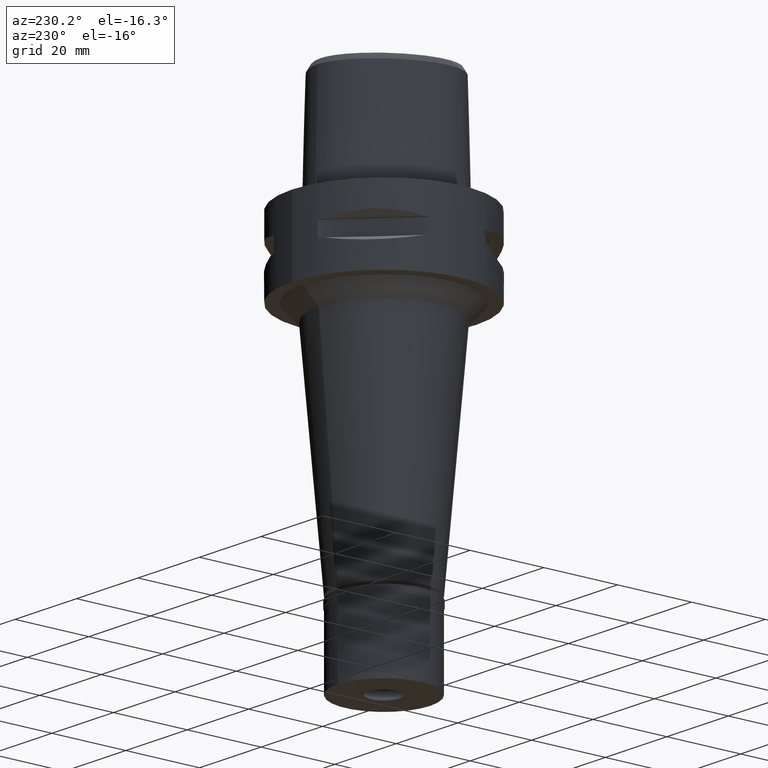
[diagram: clean part render]
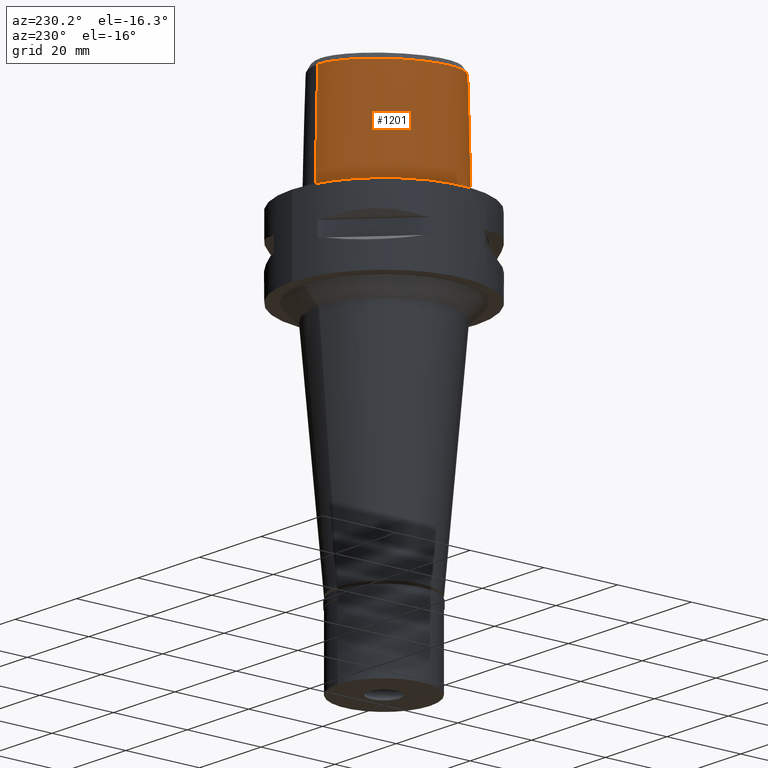
[diagram: same view with one face highlighted and labeled with its STEP entity id]
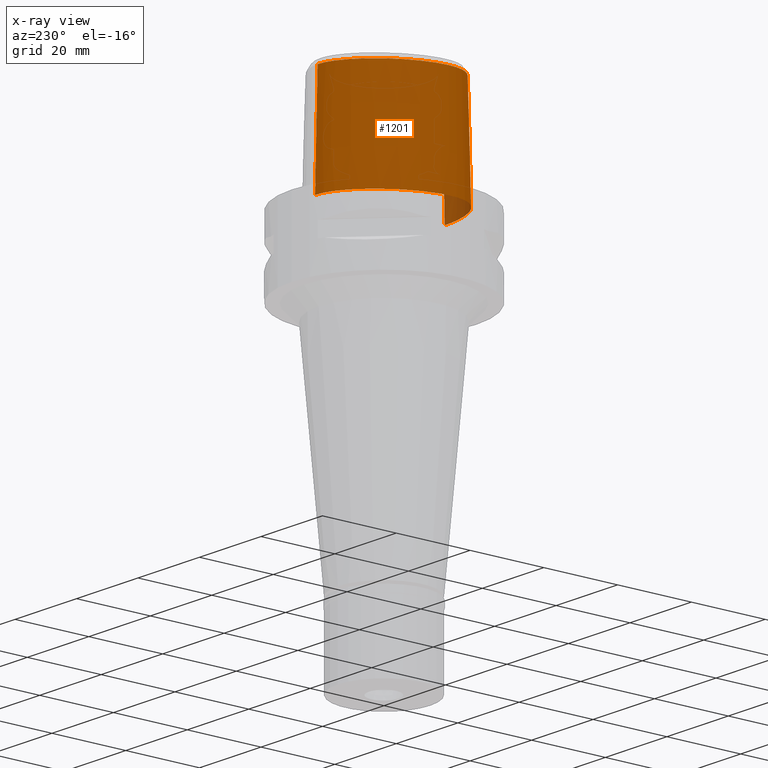
[diagram: x-ray of the same camera — body ghosted, the highlighted face saturated]
A machine part, auxiliary view. The second image highlights one B-rep face of the part: STEP entity #1201.
The next image is the same camera in x-ray: the body ghosted, the highlighted face saturated — about 3% of this face is hidden behind the body in this view.
In plain terms, the highlighted face is a freeform B-spline surface patch.
Its self-contained STEP definition (entity closure, byte-faithful):
#4 = CARTESIAN_POINT ( 'NONE',  ( -3.050024389103566325, -15.93682728871437604, 14.04426652284395161 ) ) ;
#34 = CARTESIAN_POINT ( 'NONE',  ( -2.909137552899626389, -15.97627371699405430, 13.08234413149751418 ) ) ;
#49 = CARTESIAN_POINT ( 'NONE',  ( -4.416345278271000652, 17.06979574764999796, 29.09114768107999893 ) ) ;
#58 = CARTESIAN_POINT ( 'NONE',  ( -2.835998777458668574, -15.98895818849806538, 12.87753709205216879 ) ) ;
#73 = CARTESIAN_POINT ( 'NONE',  ( -4.628819268915999707, 17.52182796820000021, 9.316772786751998936 ) ) ;
#82 = CARTESIAN_POINT ( 'NONE',  ( -2.094858927816664718, -15.97106233740284331, 16.21701581232821354 ) ) ;
#103 = CARTESIAN_POINT ( 'NONE',  ( -16.53021708484999763, 3.708305584169000468, -0.5704146604133999432 ) ) ;
#104 = VERTEX_POINT ( 'NONE', #1241 ) ;
#128 = CARTESIAN_POINT ( 'NONE',  ( -16.70311419453999946, -7.028822882155999707, 19.20396023392000018 ) ) ;
#152 = CARTESIAN_POINT ( 'NONE',  ( -11.69401646375999881, -13.71637917722999944, -0.5704146604133999432 ) ) ;
#153 = CARTESIAN_POINT ( 'NONE',  ( -0.6801907856086026882, 18.69499999639396393, 1.444263577818610117E-07 ) ) ;
#206 = CARTESIAN_POINT ( 'NONE',  ( -5.053620743697999629, -16.16974068390999975, -0.5704146604133999432 ) ) ;
#244 = CARTESIAN_POINT ( 'NONE',  ( -0.6729281202622268143, -16.02259025627639133, 16.97651237904558386 ) ) ;
#286 = EDGE_CURVE ( 'NONE', #2273, #104, #1983, .T. ) ;
#292 = ORIENTED_EDGE ( 'NONE', *, *, #4792, .F. ) ;
#375 = CARTESIAN_POINT ( 'NONE',  ( -2.030787586191475036, -15.97439197203201466, 16.27657083949404182 ) ) ;
#390 = CARTESIAN_POINT ( 'NONE',  ( -4.522582273593999780, 17.29581185792999776, 19.20396023392000018 ) ) ;
#397 = CARTESIAN_POINT ( 'NONE',  ( -2.810669180507298304, -15.93357175435962070, 15.18434255724911708 ) ) ;
#411 = CARTESIAN_POINT ( 'NONE',  ( -17.22987933507999969, -3.272349403228000053, 19.20396023392000018 ) ) ;
#417 = CARTESIAN_POINT ( 'NONE',  ( -3.048918288824055356, -15.93569181003063839, 14.09458409078545671 ) ) ;
#434 = CARTESIAN_POINT ( 'NONE',  ( -17.26695538611999936, -0.2694874671273999600, 9.316772786751998936 ) ) ;
#441 = CARTESIAN_POINT ( 'NONE',  ( -1.612726137508864621, -15.99376531707253157, 16.58900383220369790 ) ) ;
#466 = CARTESIAN_POINT ( 'NONE',  ( -2.326795673539355569, -16.05749942887522508, 12.02743345691540178 ) ) ;
#480 = CARTESIAN_POINT ( 'NONE',  ( -1.941729205868999886, 18.07741837848000088, 19.20396023392000018 ) ) ;
#504 = CARTESIAN_POINT ( 'NONE',  ( -11.44887813575999935, -13.28533853327000003, 19.20396023392000018 ) ) ;
#541 = CARTESIAN_POINT ( 'NONE',  ( -8.946741554946155972, -15.03902343408833531, 1.444263577818610117E-07 ) ) ;
#552 = CARTESIAN_POINT ( 'NONE',  ( 0.7264497205233001464, -16.46229665902999884, -0.5704146604133999432 ) ) ;
#553 = CARTESIAN_POINT ( 'NONE',  ( -14.38008119375923322, 8.302343748185458949, 1.444263577818610117E-07 ) ) ;
#562 = CARTESIAN_POINT ( 'NONE',  ( -1.185240961617781030, -16.15026635704342794, 11.18970954939986306 ) ) ;
#568 = ORIENTED_EDGE ( 'NONE', *, *, #3072, .T. ) ;
#591 = CARTESIAN_POINT ( 'NONE',  ( -16.85489160760704763, -5.354527567564632662, 28.52071192346993200 ) ) ;
#600 = DIRECTION ( 'NONE',  ( -1.379466841460966450E-12, -0.02499051295371941192, -0.9996876883618752707 ) ) ;
#614 = CARTESIAN_POINT ( 'NONE',  ( -15.84228689412569402, 3.460033471612311562, 28.52071192346993200 ) ) ;
#617 = CARTESIAN_POINT ( 'NONE',  ( -0.3789226270088273951, -16.02723154424910135, 17.03294418566279589 ) ) ;
#676 = VERTEX_POINT ( 'NONE', #745 ) ;
#677 = CARTESIAN_POINT ( 'NONE',  ( 6.782388194019119664E-08, -15.90128720080305769, 22.15000025259107730 ) ) ;
#741 = CARTESIAN_POINT ( 'NONE',  ( -2.319868985705007436, -15.95889227881301231, 15.99336665119001388 ) ) ;
#745 = CARTESIAN_POINT ( 'NONE',  ( 0.0000000000000000000, -16.02877864023999877, 17.05000000000000071 ) ) ;
#758 = CARTESIAN_POINT ( 'NONE',  ( -1.992618749368999742, 18.32080817371999970, 9.316772786751998936 ) ) ;
#766 = CARTESIAN_POINT ( 'NONE',  ( -2.121841374836336058, -15.96962928976701868, 16.19099185722664558 ) ) ;
#779 = CARTESIAN_POINT ( 'NONE',  ( -4.735056264238999724, 17.74784407848000356, -0.5704146604133999432 ) ) ;
#784 = CARTESIAN_POINT ( 'NONE',  ( -2.663989615087105634, -15.94049756288775832, 15.48802251320619128 ) ) ;
#801 = CARTESIAN_POINT ( 'NONE',  ( -16.98194847302000099, -3.273961224692000016, 29.09114768107999893 ) ) ;
#810 = CARTESIAN_POINT ( 'NONE',  ( -2.567601606276565196, -16.02824055683984028, 12.35375696231889009 ) ) ;
#833 = CARTESIAN_POINT ( 'NONE',  ( -16.84071411633999915, -5.352498120482000132, 29.09114768107999893 ) ) ;
#840 = CARTESIAN_POINT ( 'NONE',  ( -2.820449305715940547, -15.99150796465939273, 12.83914045378499402 ) ) ;
#842 = CARTESIAN_POINT ( 'NONE',  ( -3.094717981753000019E-11, 17.98202997909999823, 28.52071728569000086 ) ) ;
#864 = CARTESIAN_POINT ( 'NONE',  ( -1.824495776583121787, -16.10763072133400797, 11.54770719424161740 ) ) ;
#878 = CARTESIAN_POINT ( 'NONE',  ( -16.68217932037000040, -8.451606616345999967, -0.5704146604133999432 ) ) ;
#907 = CARTESIAN_POINT ( 'NONE',  ( -16.00353257335999757, -8.149703191360998744, 29.09114768107999893 ) ) ;
#921 = CARTESIAN_POINT ( 'NONE',  ( -15.07117015428422846, -9.793013966485744959, 28.52071192346993200 ) ) ;
#930 = CARTESIAN_POINT ( 'NONE',  ( -8.697311550176999972, -14.35163119173000013, 29.09114768107999893 ) ) ;
#940 = B_SPLINE_CURVE_WITH_KNOTS ( 'NONE', 3,
 ( #2129, #3661, #1742, #3286 ),
 .UNSPECIFIED., .F., .F.,
 ( 4, 4 ),
 ( 0.0000000000000000000, 1.000000000000000000 ),
 .UNSPECIFIED. ) ;
#941 = CARTESIAN_POINT ( 'NONE',  ( -14.26907056455792144, -10.79012254419159866, 28.52071192346993200 ) ) ;
#955 = CARTESIAN_POINT ( 'NONE',  ( -13.05575609103000190, -11.90823717143999971, 29.09114768107999893 ) ) ;
#984 = CARTESIAN_POINT ( 'NONE',  ( -8.782085146990000979, -14.58525470010000014, 19.20396023392000018 ) ) ;
#997 = CARTESIAN_POINT ( 'NONE',  ( -16.47905549556891813, -6.962316292879883406, 28.52071192346993200 ) ) ;
#1025 = CARTESIAN_POINT ( 'NONE',  ( 0.0000000000000000000, -16.02877864023999877, 17.05000000000000071 ) ) ;
#1032 = CARTESIAN_POINT ( 'NONE',  ( -3.168920966622999824, -15.55911077538999976, 28.52071192346999950 ) ) ;
#1043 = CARTESIAN_POINT ( 'NONE',  ( -1.142332392166680810, -16.01097948216498068, 16.82800652385417806 ) ) ;
#1070 = EDGE_CURVE ( 'NONE', #4221, #4281, #1816, .T. ) ;
#1072 = CARTESIAN_POINT ( 'NONE',  ( -1.154649350554052933, -16.01059875151096890, 16.82300001247257626 ) ) ;
#1136 = CARTESIAN_POINT ( 'NONE',  ( -0.4764648016454000046, 18.48199783366999682, 9.316772786751998936 ) ) ;
#1137 = ORIENTED_EDGE ( 'NONE', *, *, #286, .F. ) ;
#1143 = CARTESIAN_POINT ( 'NONE',  ( -1.331640452556058341, -16.00477934145614967, 16.74576209627321077 ) ) ;
#1161 = CARTESIAN_POINT ( 'NONE',  ( -11.47659488434000075, 12.46143684788999906, -0.5704146604133999432 ) ) ;
#1168 = CARTESIAN_POINT ( 'NONE',  ( -3.027041479268741675, -15.93083733890012255, 14.38613028388799364 ) ) ;
#1179 = CARTESIAN_POINT ( 'NONE',  ( -16.06260406707000143, 3.539545332984999515, 19.20396023392000018 ) ) ;
#1186 = CARTESIAN_POINT ( 'NONE',  ( -2.828519626698094758, -15.99018834924777188, 12.85893844538408004 ) ) ;
#1201 = ADVANCED_FACE ( 'NONE', ( #3527 ), #1797, .T. ) ;
#1205 = CARTESIAN_POINT ( 'NONE',  ( -17.57791639625000002, -5.458025465775000029, -0.5704146604133999432 ) ) ;
#1214 = CARTESIAN_POINT ( 'NONE',  ( -3.044373801969618931, -15.93377869067415631, 14.19140803545453267 ) ) ;
#1233 = CARTESIAN_POINT ( 'NONE',  ( 0.5455910023247999563, 18.19844125914999822, 19.20396023392000018 ) ) ;
#1241 = CARTESIAN_POINT ( 'NONE',  ( -3.235121119988999983, -15.64755630481999837, 24.69999999999999929 ) ) ;
#1242 = CARTESIAN_POINT ( 'NONE',  ( -2.192347023517017490, -16.07215629485219210, 11.87955887064578242 ) ) ;
#1244 = B_SPLINE_CURVE_WITH_KNOTS ( 'NONE', 3,
 ( #3374, #677, #4457, #1025 ),
 .UNSPECIFIED., .F., .F.,
 ( 4, 4 ),
 ( 0.0000000000000000000, 1.000000000000000000 ),
 .UNSPECIFIED. ) ;
#1246 = CARTESIAN_POINT ( 'NONE',  ( -17.16495051433457775, -7.165908202094125379, 1.444263577818610117E-07 ) ) ;
#1257 = CARTESIAN_POINT ( 'NONE',  ( -15.05961627665999991, -9.784614163316000202, 29.09114768107999893 ) ) ;
#1279 = CARTESIAN_POINT ( 'NONE',  ( -4.922186785192999459, -15.43572512044000078, 29.09114768107999893 ) ) ;
#1305 = CARTESIAN_POINT ( 'NONE',  ( -13.20908636473000008, -12.10346125165999887, 19.20396023392000018 ) ) ;
#1316 = CARTESIAN_POINT ( 'NONE',  ( -3.235121119988999983, -15.64755630481999837, 24.69999999999999929 ) ) ;
#1354 = CARTESIAN_POINT ( 'NONE',  ( -15.66039569286999722, -10.22138777375999830, -0.5704146604133999432 ) ) ;
#1393 = CARTESIAN_POINT ( 'NONE',  ( -4.422474562381081498, 17.08283562089894758, 28.52071192346993200 ) ) ;
#1421 = CARTESIAN_POINT ( 'NONE',  ( -1.161963448143296107, -16.01037049747072771, 16.81999471490733455 ) ) ;
#1444 = CARTESIAN_POINT ( 'NONE',  ( -2.149496932726999772E-12, -16.18126839358999902, 10.94999999999999929 ) ) ;
#1513 = CARTESIAN_POINT ( 'NONE',  ( -1.464230115316312197, -15.99978155752924636, 16.67600899016695948 ) ) ;
#1540 = CARTESIAN_POINT ( 'NONE',  ( -2.615901618704160381, -15.94298692150345964, 15.57147967508559105 ) ) ;
#1558 = CARTESIAN_POINT ( 'NONE',  ( -0.4636176469748000128, 18.23430326045000172, 19.20396023392000018 ) ) ;
#1565 = CARTESIAN_POINT ( 'NONE',  ( -2.884965141857559257, -15.98065922520799909, 13.00785839096715435 ) ) ;
#1591 = CARTESIAN_POINT ( 'NONE',  ( -2.651693848328785297, -16.01689519106128756, 12.49206992028461016 ) ) ;
#1617 = CARTESIAN_POINT ( 'NONE',  ( -2.277845221344410476, -16.06297226044946314, 11.97064251377653576 ) ) ;
#1647 = CARTESIAN_POINT ( 'NONE',  ( -3.168920966622999824, -15.55911077538999976, 28.52071192346999950 ) ) ;
#1659 = CARTESIAN_POINT ( 'NONE',  ( -8.951632340615999439, -15.05250171682999927, -0.5704146604133999432 ) ) ;
#1680 = CARTESIAN_POINT ( 'NONE',  ( -5.009809424195999839, -15.92506882941999891, 9.316772786751998936 ) ) ;
#1683 = CARTESIAN_POINT ( 'NONE',  ( -11.46563507746004085, 12.45218749765599320, 1.444263577818610117E-07 ) ) ;
#1690 = CARTESIAN_POINT ( 'NONE',  ( -3.168920966622999824, -15.55911077538999976, 28.52071192346999950 ) ) ;
#1708 = CARTESIAN_POINT ( 'NONE',  ( -13.36241663843000005, -12.29868533187000068, 9.316772786751998936 ) ) ;
#1733 = CARTESIAN_POINT ( 'NONE',  ( -1.298308558267999846, -16.00668752649999860, 19.20396023392000018 ) ) ;
#1739 = CARTESIAN_POINT ( 'NONE',  ( -1.572520811364875204, -16.12649376600646534, 11.38472095010678764 ) ) ;
#1742 = CARTESIAN_POINT ( 'NONE',  ( -2.169052023958117470, -15.77399788493143085, 24.70000016923092545 ) ) ;
#1770 = CARTESIAN_POINT ( 'NONE',  ( -0.7716804096337155361, -16.02065638628776512, 16.95256773572716824 ) ) ;
#1797 = B_SPLINE_SURFACE_WITH_KNOTS ( 'NONE', 3, 3, ( 
 ( #4190, #3051, #1233, #1915 ),
 ( #3078, #3050, #4583, #2373 ),
 ( #4214, #1136, #1558, #4627 ),
 ( #3887, #758, #480, #3862 ),
 ( #779, #73, #390, #49 ),
 ( #4655, #3102, #2320, #3124 ),
 ( #1161, #4291, #1940, #2395 ),
 ( #3911, #3838, #2016, #3481 ),
 ( #103, #4236, #1179, #2676 ),
 ( #3554, #434, #2719, #2298 ),
 ( #3819, #2701, #411, #801 ),
 ( #1205, #2744, #4265, #833 ),
 ( #3625, #2420, #128, #3966 ),
 ( #878, #4724, #4680, #907 ),
 ( #3580, #2067, #3278, #3938 ),
 ( #1354, #3601, #4776, #1257 ),
 ( #2846, #2890, #2795, #2045 ),
 ( #4311, #1708, #1305, #955 ),
 ( #152, #4384, #504, #4360 ),
 ( #1659, #3200, #984, #930 ),
 ( #206, #1680, #4700, #1279 ),
 ( #2818, #3223, #1733, #4410 ),
 ( #552, #3179, #2524, #4037 ),
 ( #2474, #2498, #2117, #4011 ) ),
 .UNSPECIFIED., .F., .F., .F.,
 ( 4, 1, 1, 1, 1, 1, 1, 1, 1, 1, 1, 1, 1, 1, 1, 1, 1, 1, 1, 1, 1, 4 ),
 ( 4, 4 ),
 ( -0.01173812893898000011, 0.0000000000000000000, 0.04166666666808999803, 0.08333333333469000737, 0.1666666666679000042, 0.2500000000011000090, 0.3333333333342999860, 0.4166666666675999942, 0.5000000000008000267, 0.5416666666674000430, 0.5833333333340000593, 0.6250000000005999645, 0.6458333333339000282, 0.6666666666671999808, 0.6875000000005000445, 0.7083333333337999971, 0.7500000000004000134, 0.7916666666671000607, 0.8333333333336000459, 0.9166666666668999985, 1.000000000000000000, 1.017968513185000035 ),
 ( 2.778254612478999971E-09, 0.9999998583090000670 ),
 .UNSPECIFIED. ) ;
#1816 = B_SPLINE_CURVE_WITH_KNOTS ( 'NONE', 3,
 ( #4702, #153, #2454, #3967, #3987, #1683, #553, #3226, #2092, #4313, #2047, #1246, #2355, #2859, #2032, #2784, #3874, #4300, #541, #4740, #3568, #4669 ),
 .UNSPECIFIED., .F., .F.,
 ( 4, 1, 1, 1, 1, 1, 1, 1, 1, 1, 1, 1, 1, 1, 1, 1, 1, 1, 1, 4 ),
 ( 0.0000000000000000000, 0.04166666666808999803, 0.08333333333469000737, 0.1666666666679000042, 0.2500000000011000090, 0.3333333333342999860, 0.4166666666675999942, 0.5000000000008000267, 0.5416666666674000430, 0.5833333333340000593, 0.6250000000005999645, 0.6458333333339000282, 0.6666666666671999808, 0.6875000000005000445, 0.7083333333337999971, 0.7500000000004000134, 0.7916666666671000607, 0.8333333333336000459, 0.9166666666668999985, 1.000000000000000000 ),
 .UNSPECIFIED. ) ;
#1884 = VERTEX_POINT ( 'NONE', #2590 ) ;
#1901 = CARTESIAN_POINT ( 'NONE',  ( -2.167461438340767987, -16.07478142648848163, 11.85411610869230614 ) ) ;
#1909 = CARTESIAN_POINT ( 'NONE',  ( 7.243243713501998717E-11, 18.69499999997999851, 1.586508702188999830E-13 ) ) ;
#1915 = CARTESIAN_POINT ( 'NONE',  ( 0.5305684289457999192, 17.95174208914000147, 29.09114768107999893 ) ) ;
#1923 = CARTESIAN_POINT ( 'NONE',  ( -3.012997481774652098, -15.92993551890240589, 14.48403558616877973 ) ) ;
#1940 = CARTESIAN_POINT ( 'NONE',  ( -11.09665500870999999, 12.14079278762999969, 19.20396023392000018 ) ) ;
#1949 = CARTESIAN_POINT ( 'NONE',  ( -2.977125115133986810, -15.96287852150346609, 13.32982323607668107 ) ) ;
#1974 = CARTESIAN_POINT ( 'NONE',  ( -2.147290074988068564, -15.96826519308856795, 16.16606823402926807 ) ) ;
#1983 = B_SPLINE_CURVE_WITH_KNOTS ( 'NONE', 3,
 ( #1690, #3233, #4734, #1316 ),
 .UNSPECIFIED., .F., .F.,
 ( 4, 4 ),
 ( 0.0000000000000000000, 1.000000000000000000 ),
 .UNSPECIFIED. ) ;
#2000 = CARTESIAN_POINT ( 'NONE',  ( -2.218346767529178365, -16.06939536445589312, 11.90655067609834994 ) ) ;
#2016 = CARTESIAN_POINT ( 'NONE',  ( -13.96223226179000143, 8.061115409275000587, 19.20396023392000018 ) ) ;
#2025 = VERTEX_POINT ( 'NONE', #3417 ) ;
#2032 = CARTESIAN_POINT ( 'NONE',  ( -15.64884223963316678, -10.21298827912482210, 1.444263577818610117E-07 ) ) ;
#2045 = CARTESIAN_POINT ( 'NONE',  ( -14.25868490798000110, -10.78027804166999992, 29.09114768107999893 ) ) ;
#2047 = CARTESIAN_POINT ( 'NONE',  ( -17.56373942573930691, -5.455996093236326061, 1.444263577818610117E-07 ) ) ;
#2067 = CARTESIAN_POINT ( 'NONE',  ( -16.00394173755999816, -9.239880069933999351, 9.316772786751998936 ) ) ;
#2075 = CARTESIAN_POINT ( 'NONE',  ( -1.200046882047090424, -16.14948273154547920, 11.19596910874562035 ) ) ;
#2092 = CARTESIAN_POINT ( 'NONE',  ( -17.49754711949925934, -0.2285937506339092706, 1.444263577818610117E-07 ) ) ;
#2117 = CARTESIAN_POINT ( 'NONE',  ( 1.070056061195999941, -15.95437369313999731, 19.20396023392000018 ) ) ;
#2129 = CARTESIAN_POINT ( 'NONE',  ( 2.030224829794000080E-07, -15.83752876601000281, 24.70000006102999990 ) ) ;
#2139 = CARTESIAN_POINT ( 'NONE',  ( -2.149496932726999772E-12, -16.18126839358999902, 10.94999999999999929 ) ) ;
#2149 = B_SPLINE_CURVE_WITH_KNOTS ( 'NONE', 3,
 ( #1647, #3188, #4322, #3764, #3023, #4419, #941, #921, #3952, #4810, #997, #591, #2858, #2900, #614, #2535, #4763, #2435, #1393, #4048, #4712, #4370 ),
 .UNSPECIFIED., .F., .F.,
 ( 4, 1, 1, 1, 1, 1, 1, 1, 1, 1, 1, 1, 1, 1, 1, 1, 1, 1, 1, 4 ),
 ( 0.0000000000000000000, 0.03108635432774213905, 0.1191694130251624156, 0.1632109423737140297, 0.2072524717224770996, 0.2512940010711344208, 0.2733147657454630397, 0.2953355304197917697, 0.3173562950941203886, 0.3393770597684491186, 0.3834185891171063010, 0.4274601184657636499, 0.4715016478144209988, 0.5595847065117356411, 0.6476677652091560322, 0.7357508239064706190, 0.8238338826037853169, 0.9119169413011103398, 0.9559584706497676887, 1.000000000000000000 ),
 .UNSPECIFIED. ) ;
#2273 = VERTEX_POINT ( 'NONE', #1032 ) ;
#2280 = CARTESIAN_POINT ( 'NONE',  ( -2.823487070365362506, -15.99101270351570214, 12.84654193248369403 ) ) ;
#2298 = CARTESIAN_POINT ( 'NONE',  ( -16.77753618931000190, -0.3562822953162999573, 29.09114768107999893 ) ) ;
#2305 = CARTESIAN_POINT ( 'NONE',  ( -2.453157249255234706, -15.95160785209424503, 15.82331514067402267 ) ) ;
#2320 = CARTESIAN_POINT ( 'NONE',  ( -7.668807724522999969, 15.44980315931000092, 19.20396023392000018 ) ) ;
#2327 = CARTESIAN_POINT ( 'NONE',  ( -2.789432624430154828, -15.93448362603996138, 15.23385107219888468 ) ) ;
#2350 = CARTESIAN_POINT ( 'NONE',  ( -2.552453281223321824, -16.03022206925511028, 12.33036638904224347 ) ) ;
#2355 = CARTESIAN_POINT ( 'NONE',  ( -16.66912841808498413, -8.445800779780123335, 1.444263577818610117E-07 ) ) ;
#2359 = VECTOR ( 'NONE', #3492, 1000.000000000000227 ) ;
#2373 = CARTESIAN_POINT ( 'NONE',  ( 0.3539521796026999789, 17.96246308134000103, 29.09114768107999893 ) ) ;
#2380 = CARTESIAN_POINT ( 'NONE',  ( -2.746377481657158004, -16.00326057041207406, 12.66963668950922894 ) ) ;
#2395 = CARTESIAN_POINT ( 'NONE',  ( -10.90668507088999917, 11.98047075750000090, 29.09114768107999893 ) ) ;
#2405 = CARTESIAN_POINT ( 'NONE',  ( -0.3804472261463368032, -16.18126839358999902, 10.94999999999999751 ) ) ;
#2420 = CARTESIAN_POINT ( 'NONE',  ( -16.94089131147000060, -7.099401463249000344, 9.316772786751998936 ) ) ;
#2435 = CARTESIAN_POINT ( 'NONE',  ( -7.523733151595092039, 15.26501052509838985, 28.52071192346993200 ) ) ;
#2454 = CARTESIAN_POINT ( 'NONE',  ( -2.040572356923711972, 18.55015624643911210, 1.444263577818610117E-07 ) ) ;
#2474 = CARTESIAN_POINT ( 'NONE',  ( 1.089046662237999952, -16.44835921822999936, -0.5704146604133999432 ) ) ;
#2482 = CARTESIAN_POINT ( 'NONE',  ( -1.365876440251017732, -16.14000093520547807, 11.27254294478946406 ) ) ;
#2498 = CARTESIAN_POINT ( 'NONE',  ( 1.079551361717000058, -16.20136645568999967, 9.316772786751998936 ) ) ;
#2524 = CARTESIAN_POINT ( 'NONE',  ( 0.7138086214377000749, -15.96808632749000267, 19.20396023392000018 ) ) ;
#2535 = CARTESIAN_POINT ( 'NONE',  ( -13.75951393053115090, 7.944084103042361455, 28.52071192346993200 ) ) ;
#2590 = CARTESIAN_POINT ( 'NONE',  ( -3.094717981753000019E-11, 17.98202997909999823, 28.52071728569000086 ) ) ;
#2614 = VECTOR ( 'NONE', #600, 1000.000000000000114 ) ;
#2676 = CARTESIAN_POINT ( 'NONE',  ( -15.82879755817999801, 3.455165207394000237, 29.09114768107999893 ) ) ;
#2684 = EDGE_CURVE ( 'NONE', #3409, #4281, #3693, .T. ) ;
#2685 = CARTESIAN_POINT ( 'NONE',  ( -1.777739861706575608, -15.98655714082971713, 16.48034954023893306 ) ) ;
#2701 = CARTESIAN_POINT ( 'NONE',  ( -17.47781019714000195, -3.270737581764000090, 9.316772786751998936 ) ) ;
#2708 = CARTESIAN_POINT ( 'NONE',  ( -3.033174470079177176, -15.94941370605617159, 13.62317640955338760 ) ) ;
#2719 = CARTESIAN_POINT ( 'NONE',  ( -17.02224578770999841, -0.3128848812219000020, 19.20396023392000018 ) ) ;
#2726 = CARTESIAN_POINT ( 'NONE',  ( -2.676760126935361583, -16.01335860443708370, 12.53714519679417627 ) ) ;
#2744 = CARTESIAN_POINT ( 'NONE',  ( -17.33218230294999884, -5.422849684011000093, 9.316772786751998936 ) ) ;
#2753 = CARTESIAN_POINT ( 'NONE',  ( -1.647720974877696198, -15.99226611569825174, 16.56665347345779438 ) ) ;
#2784 = CARTESIAN_POINT ( 'NONE',  ( -14.78833380136935460, -11.28232909906846260, 1.444263577818610117E-07 ) ) ;
#2791 = EDGE_CURVE ( 'NONE', #2025, #676, #1244, .T. ) ;
#2795 = CARTESIAN_POINT ( 'NONE',  ( -14.43869629747999994, -10.95090977443999947, 19.20396023392000018 ) ) ;
#2802 = CARTESIAN_POINT ( 'NONE',  ( -1.994661405230212292, -16.09284332352435598, 11.68121651172126896 ) ) ;
#2806 = ORIENTED_EDGE ( 'NONE', *, *, #2684, .F. ) ;
#2818 = CARTESIAN_POINT ( 'NONE',  ( -1.321318947021999923, -16.50155084522999971, -0.5704146604133999432 ) ) ;
#2846 = CARTESIAN_POINT ( 'NONE',  ( -14.79871907647000029, -11.29217323999000122, -0.5704146604133999432 ) ) ;
#2858 = CARTESIAN_POINT ( 'NONE',  ( -16.99625270563316803, -3.273868231552861996, 28.52071192346993200 ) ) ;
#2859 = CARTESIAN_POINT ( 'NONE',  ( -16.20602471650332177, -9.356552732565868169, 1.444263577818610117E-07 ) ) ;
#2874 = CARTESIAN_POINT ( 'NONE',  ( -1.489022098416611373, -16.13222843889027658, 11.33656707562794352 ) ) ;
#2890 = CARTESIAN_POINT ( 'NONE',  ( -14.61870768696999967, -11.12154150722000168, 9.316772786751998936 ) ) ;
#2900 = CARTESIAN_POINT ( 'NONE',  ( -16.79165457291544072, -0.3537785057482799034, 28.52071192346993200 ) ) ;
#2986 = CARTESIAN_POINT ( 'NONE',  ( -0.9200171648291807225, -16.01717542030822727, 16.90838961258409157 ) ) ;
#3023 = CARTESIAN_POINT ( 'NONE',  ( -11.33338053122012390, -13.08225253589505499, 28.52071192346993200 ) ) ;
#3042 = EDGE_LOOP ( 'NONE', ( #2806, #292, #4543, #3268, #1137, #4180, #568, #4374 ) ) ;
#3050 = CARTESIAN_POINT ( 'NONE',  ( 0.3738602562599999679, 18.45648977659999801, 9.316772786751998936 ) ) ;
#3051 = CARTESIAN_POINT ( 'NONE',  ( 0.5606135757037999934, 18.44514042915999852, 9.316772786751998936 ) ) ;
#3059 = CARTESIAN_POINT ( 'NONE',  ( -1.246904710702340768, -16.00770134240424269, 16.78481881916647822 ) ) ;
#3072 = EDGE_CURVE ( 'NONE', #1884, #4221, #4155, .T. ) ;
#3078 = CARTESIAN_POINT ( 'NONE',  ( 0.3838142945887000335, 18.70350312421999917, -0.5704146604133999432 ) ) ;
#3088 = CARTESIAN_POINT ( 'NONE',  ( -2.814800487489387493, -15.93339868692382488, 15.17448999603847248 ) ) ;
#3102 = CARTESIAN_POINT ( 'NONE',  ( -7.822764762784999881, 15.64591007234000131, 9.316772786751998936 ) ) ;
#3106 = EDGE_CURVE ( 'NONE', #2273, #1884, #2149, .T. ) ;
#3110 = CARTESIAN_POINT ( 'NONE',  ( -2.727932080410536919, -15.93733995233605505, 15.36492654818570536 ) ) ;
#3124 = CARTESIAN_POINT ( 'NONE',  ( -7.514850686259999968, 15.25369624628000054, 29.09114768107999893 ) ) ;
#3133 = CARTESIAN_POINT ( 'NONE',  ( -2.481413756882850929, -16.03938740154340792, 12.22374741087844896 ) ) ;
#3160 = CARTESIAN_POINT ( 'NONE',  ( -2.953287761239812070, -15.96791042230702473, 13.23104891048737564 ) ) ;
#3179 = CARTESIAN_POINT ( 'NONE',  ( 0.7201291709804999996, -16.21519149326000075, 9.316772786751998936 ) ) ;
#3186 = CARTESIAN_POINT ( 'NONE',  ( -1.234760267100963649, -16.14760890805748517, 11.21096960602401538 ) ) ;
#3188 = CARTESIAN_POINT ( 'NONE',  ( -3.738627773282112265, -15.49270868799475664, 28.52071192346992845 ) ) ;
#3200 = CARTESIAN_POINT ( 'NONE',  ( -8.866858743803000209, -14.81887820845999926, 9.316772786751998936 ) ) ;
#3223 = CARTESIAN_POINT ( 'NONE',  ( -1.309813752644999774, -16.25411918586999604, 9.316772786751998936 ) ) ;
#3226 = CARTESIAN_POINT ( 'NONE',  ( -16.51672824438333720, 3.703437498767654823, 1.444263577818610117E-07 ) ) ;
#3233 = CARTESIAN_POINT ( 'NONE',  ( -3.191384176940533557, -15.58827403572775339, 27.24714128231333277 ) ) ;
#3262 = CARTESIAN_POINT ( 'NONE',  ( -2.149496932726999772E-12, -16.18126839358999902, 10.94999999999999929 ) ) ;
#3268 = ORIENTED_EDGE ( 'NONE', *, *, #3285, .T. ) ;
#3278 = CARTESIAN_POINT ( 'NONE',  ( -15.78948632800999974, -9.116064181139998723, 19.20396023392000018 ) ) ;
#3285 = EDGE_CURVE ( 'NONE', #2025, #104, #940, .T. ) ;
#3286 = CARTESIAN_POINT ( 'NONE',  ( -3.235121119988999983, -15.64755630481999837, 24.69999999999999929 ) ) ;
#3343 = CARTESIAN_POINT ( 'NONE',  ( -0.9942354941257960377, -16.01528989706931583, 16.88423654522949491 ) ) ;
#3374 = CARTESIAN_POINT ( 'NONE',  ( 2.030224829794000080E-07, -15.83752876601000281, 24.70000006102999990 ) ) ;
#3409 = VERTEX_POINT ( 'NONE', #1444 ) ;
#3417 = CARTESIAN_POINT ( 'NONE',  ( 2.030224829794000080E-07, -15.83752876601000281, 24.70000006102999990 ) ) ;
#3441 = CARTESIAN_POINT ( 'NONE',  ( -2.897875851388389989, -15.92997726602839492, 14.97345579577849328 ) ) ;
#3464 = CARTESIAN_POINT ( 'NONE',  ( -2.955918695228479720, -15.92874700794745557, 14.77770287554525019 ) ) ;
#3481 = CARTESIAN_POINT ( 'NONE',  ( -13.74710211697999895, 7.936918639792999386, 29.09114768107999893 ) ) ;
#3489 = CARTESIAN_POINT ( 'NONE',  ( -2.139722381400450235, -15.96867257770621507, 16.17353267031688446 ) ) ;
#3492 = DIRECTION ( 'NONE',  ( 3.623588048647890083E-12, 0.02499051285796925065, -0.9996876883642689116 ) ) ;
#3513 = CARTESIAN_POINT ( 'NONE',  ( -3.040936525959400782, -15.93294854341576539, 14.23999838212622571 ) ) ;
#3527 = FACE_OUTER_BOUND ( 'NONE', #3042, .T. ) ;
#3536 = CARTESIAN_POINT ( 'NONE',  ( -1.509334869949237268, -15.99801316580282418, 16.65089544971683821 ) ) ;
#3554 = CARTESIAN_POINT ( 'NONE',  ( -17.51166498451999942, -0.2260900530330000047, -0.5704146604133999432 ) ) ;
#3568 = CARTESIAN_POINT ( 'NONE',  ( -1.683697722314835943, -16.45499999638638400, 1.444263577818610117E-07 ) ) ;
#3580 = CARTESIAN_POINT ( 'NONE',  ( -16.21839714711000013, -9.363695958727999979, -0.5704146604133999432 ) ) ;
#3601 = CARTESIAN_POINT ( 'NONE',  ( -15.46013588747000078, -10.07579657027999964, 9.316772786751998936 ) ) ;
#3625 = CARTESIAN_POINT ( 'NONE',  ( -17.17866842840000174, -7.169980044342000092, -0.5704146604133999432 ) ) ;
#3660 = CARTESIAN_POINT ( 'NONE',  ( -1.304824586064510239, -16.14367980511045531, 11.24258093297969019 ) ) ;
#3661 = CARTESIAN_POINT ( 'NONE',  ( -1.084489118009172026, -15.83754148632170811, 24.70000016923092545 ) ) ;
#3693 = LINE ( 'NONE', #2139, #2614 ) ;
#3709 = CARTESIAN_POINT ( 'NONE',  ( -0.1860095695895606360, -16.02877864024000232, 17.05000000000000782 ) ) ;
#3737 = CARTESIAN_POINT ( 'NONE',  ( 0.0000000000000000000, -16.02877864023999877, 17.05000000000000071 ) ) ;
#3764 = CARTESIAN_POINT ( 'NONE',  ( -8.702202515497702962, -14.36510996956289432, 28.52071192346993200 ) ) ;
#3808 = CARTESIAN_POINT ( 'NONE',  ( -2.174903967716026898, -16.07399873101336141, 11.86167149722171388 ) ) ;
#3819 = CARTESIAN_POINT ( 'NONE',  ( -17.72574105918999976, -3.269125760300000128, -0.5704146604133999432 ) ) ;
#3824 = CARTESIAN_POINT ( 'NONE',  ( -2.757857542925465477, -15.93590525390315271, 15.30389640927966788 ) ) ;
#3838 = CARTESIAN_POINT ( 'NONE',  ( -14.17736240660000036, 8.185312178757000012, 9.316772786751998936 ) ) ;
#3846 = CARTESIAN_POINT ( 'NONE',  ( -1.578081282717826994, -15.99520688258700218, 16.61014732800261484 ) ) ;
#3862 = CARTESIAN_POINT ( 'NONE',  ( -1.890839662369000029, 17.83402858325000295, 29.09114768107999893 ) ) ;
#3871 = CARTESIAN_POINT ( 'NONE',  ( -2.543826128444886869, -16.03134158490992078, 12.31726274100129537 ) ) ;
#3874 = CARTESIAN_POINT ( 'NONE',  ( -13.50690093256139157, -12.48264648152385803, 1.444263577818610117E-07 ) ) ;
#3887 = CARTESIAN_POINT ( 'NONE',  ( -2.043508292869000265, 18.56419796895000118, -0.5704146604133999432 ) ) ;
#3895 = CARTESIAN_POINT ( 'NONE',  ( -2.816407481551082004, -15.93333177460182881, 15.17063687596093047 ) ) ;
#3911 = CARTESIAN_POINT ( 'NONE',  ( -14.39249255141000106, 8.309508948238999437, -0.5704146604133999432 ) ) ;
#3921 = CARTESIAN_POINT ( 'NONE',  ( -1.171575576435079036, -16.15098385800270364, 11.18398276020164417 ) ) ;
#3938 = CARTESIAN_POINT ( 'NONE',  ( -15.57503091846000132, -8.992248292345999872, 29.09114768107999893 ) ) ;
#3952 = CARTESIAN_POINT ( 'NONE',  ( -15.58740380353718002, -8.999391780896795368, 28.52071192346993200 ) ) ;
#3966 = CARTESIAN_POINT ( 'NONE',  ( -16.46533707760999832, -6.958244301063000847, 29.09114768107999893 ) ) ;
#3967 = CARTESIAN_POINT ( 'NONE',  ( -4.728927205264671585, 17.73480468420080314, 1.444263577818610117E-07 ) ) ;
#3987 = CARTESIAN_POINT ( 'NONE',  ( -7.967839661976221066, 15.83070312213826547, 1.444263577818610117E-07 ) ) ;
#4011 = CARTESIAN_POINT ( 'NONE',  ( 1.060560760675000047, -15.70738093059999940, 29.09114768107999893 ) ) ;
#4037 = CARTESIAN_POINT ( 'NONE',  ( 0.7074880718949000391, -15.72098116173000371, 29.09114768107999893 ) ) ;
#4048 = CARTESIAN_POINT ( 'NONE',  ( -1.893775706183930652, 17.84807082154101110, 28.52071192346993200 ) ) ;
#4155 = LINE ( 'NONE', #842, #2359 ) ;
#4174 = CARTESIAN_POINT ( 'NONE',  ( -2.785351805582556572, -15.99721084885888445, 12.75429401941662277 ) ) ;
#4180 = ORIENTED_EDGE ( 'NONE', *, *, #3106, .T. ) ;
#4190 = CARTESIAN_POINT ( 'NONE',  ( 0.5756361490827999194, 18.69183959917999971, -0.5704146604133999432 ) ) ;
#4201 = CARTESIAN_POINT ( 'NONE',  ( -1.684236301197035823, -15.99068050411804975, 16.54283389550539596 ) ) ;
#4214 = CARTESIAN_POINT ( 'NONE',  ( -0.4893119563158999097, 18.72969240690000348, -0.5704146604133999432 ) ) ;
#4221 = VERTEX_POINT ( 'NONE', #1909 ) ;
#4222 = CARTESIAN_POINT ( 'NONE',  ( -1.671121799479824643, -15.99125384014655005, 16.55147925626843985 ) ) ;
#4229 = CARTESIAN_POINT ( 'NONE',  ( -1.725937783839000138E-11, -16.45500000000000185, 1.598351081118999833E-13 ) ) ;
#4236 = CARTESIAN_POINT ( 'NONE',  ( -16.29641057595999953, 3.623925458576999770, 9.316772786751998936 ) ) ;
#4245 = CARTESIAN_POINT ( 'NONE',  ( -2.611019405680786942, -16.02245593392139611, 12.42336243517980776 ) ) ;
#4265 = CARTESIAN_POINT ( 'NONE',  ( -17.08644820964999766, -5.387673902246000068, 19.20396023392000018 ) ) ;
#4274 = CARTESIAN_POINT ( 'NONE',  ( -1.858121229639702943, -15.98284882596949430, 16.42071856142349517 ) ) ;
#4281 = VERTEX_POINT ( 'NONE', #4229 ) ;
#4291 = CARTESIAN_POINT ( 'NONE',  ( -11.28662494651999992, 12.30111481775999849, 9.316772786751998936 ) ) ;
#4297 = CARTESIAN_POINT ( 'NONE',  ( -1.175386497639736127, -16.15078445366181015, 11.18557374674745830 ) ) ;
#4300 = CARTESIAN_POINT ( 'NONE',  ( -11.68694516404650230, -13.70394530935218569, 1.444263577818610117E-07 ) ) ;
#4311 = CARTESIAN_POINT ( 'NONE',  ( -13.51574691212999824, -12.49390941207999894, -0.5704146604133999432 ) ) ;
#4313 = CARTESIAN_POINT ( 'NONE',  ( -17.71143735198855040, -3.269218750023390463, 1.444263577818610117E-07 ) ) ;
#4322 = CARTESIAN_POINT ( 'NONE',  ( -5.902447850708179011, -15.16907854011547307, 28.52071192346992845 ) ) ;
#4360 = CARTESIAN_POINT ( 'NONE',  ( -11.32630897176000140, -13.06981821129000032, 29.09114768107999893 ) ) ;
#4370 = CARTESIAN_POINT ( 'NONE',  ( -3.094717981753000019E-11, 17.98202997909999823, 28.52071728569000086 ) ) ;
#4374 = ORIENTED_EDGE ( 'NONE', *, *, #1070, .T. ) ;
#4384 = CARTESIAN_POINT ( 'NONE',  ( -11.57144729976000086, -13.50085885524999973, 9.316772786751998936 ) ) ;
#4401 = B_SPLINE_CURVE_WITH_KNOTS ( 'NONE', 3,
 ( #3737, #3709, #617, #244, #1770, #2986, #3343, #4496, #4841, #1043, #1072, #1421, #3059, #1143, #1513, #3536, #3846, #441, #2753, #4222, #4201, #2685, #4274, #4564, #375, #82, #766, #3489, #1974, #741, #2305, #1540, #784, #3110, #3824, #2327, #4944, #397, #3088, #3895, #3441, #3464, #1923, #1168, #3513, #1214, #417, #4, #4592, #2708, #1949, #3160, #34, #1565, #4615, #58, #1186, #2280, #840, #4174, #2380, #2726, #1591, #4245, #4666, #810, #2350, #3871, #3133, #4637, #466, #1617, #2000, #1242, #3808, #1901, #2802, #864, #1739, #2874, #2482, #3660, #3186, #2075, #562, #4297, #3921, #4710, #2405, #3262 ),
 .UNSPECIFIED., .F., .F.,
 ( 4, 2, 2, 1, 1, 1, 2, 2, 2, 2, 1, 2, 2, 2, 1, 1, 2, 2, 2, 2, 1, 1, 1, 2, 2, 2, 2, 2, 2, 2, 2, 1, 1, 1, 2, 2, 2, 2, 1, 2, 2, 2, 1, 1, 2, 2, 2, 2, 1, 1, 1, 2, 2, 4 ),
 ( 0.0000000000000000000, 0.06249999999998995248, 0.09374999999998480382, 0.1093749999999823891, 0.1171874999999813066, 0.1210937499999808070, 0.1230468749999805295, 0.1249999999999802380, 0.1562499999999793499, 0.1718749999999791001, 0.1796874999999790168, 0.1835937499999792388, 0.1874999999999794331, 0.2187499999999802380, 0.2343749999999803491, 0.2421874999999800715, 0.2460937499999802658, 0.2499999999999804601, 0.3124999999999873990, 0.3437499999999908407, 0.3593749999999927836, 0.3671874999999940603, 0.3710937499999946709, 0.3730468749999950040, 0.3749999999999952816, 0.4374999999999962252, 0.4687499999999963918, 0.4843749999999965028, 0.4999999999999966693, 0.5624999999999970024, 0.5937499999999970024, 0.6093749999999970024, 0.6171874999999968914, 0.6210937499999966693, 0.6230468749999965583, 0.6249999999999964473, 0.6562499999999982236, 0.6718749999999987788, 0.6796874999999988898, 0.6835937499999986677, 0.6874999999999984457, 0.7187499999999974465, 0.7343749999999970024, 0.7421874999999964473, 0.7460937499999963363, 0.7499999999999961142, 0.8124999999999946709, 0.8437499999999941158, 0.8593749999999940048, 0.8671874999999938938, 0.8710937499999941158, 0.8730468749999942268, 0.8749999999999943379, 1.000000000000000000 ),
 .UNSPECIFIED. ) ;
#4410 = CARTESIAN_POINT ( 'NONE',  ( -1.286803363892000007, -15.75925586713000293, 29.09114768107999893 ) ) ;
#4419 = CARTESIAN_POINT ( 'NONE',  ( -13.06460239553369007, -11.91950051571248181, 28.52071192346993200 ) ) ;
#4457 = CARTESIAN_POINT ( 'NONE',  ( 6.797911673388231572E-08, -15.96503292052294398, 19.60000012629557986 ) ) ;
#4496 = CARTESIAN_POINT ( 'NONE',  ( -1.080687980688739280, -16.01283629952125409, 16.85233897233271705 ) ) ;
#4543 = ORIENTED_EDGE ( 'NONE', *, *, #2791, .F. ) ;
#4564 = CARTESIAN_POINT ( 'NONE',  ( -1.974011923642615018, -15.97722169910660561, 16.32556985268800531 ) ) ;
#4583 = CARTESIAN_POINT ( 'NONE',  ( 0.3639062179313999890, 18.20947642896999596, 19.20396023392000018 ) ) ;
#4592 = CARTESIAN_POINT ( 'NONE',  ( -3.049900212868041027, -15.94261167837582960, 13.81468546120752627 ) ) ;
#4615 = CARTESIAN_POINT ( 'NONE',  ( -2.852964108057065573, -15.98613240798083268, 12.92095709857100161 ) ) ;
#4627 = CARTESIAN_POINT ( 'NONE',  ( -0.4507704923042999967, 17.98660868722999950, 29.09114768107999893 ) ) ;
#4637 = CARTESIAN_POINT ( 'NONE',  ( -2.421847348362510033, -16.04659734725419185, 12.14335169878023279 ) ) ;
#4655 = CARTESIAN_POINT ( 'NONE',  ( -7.976721801047999882, 15.84201698537000169, -0.5704146604133999432 ) ) ;
#4666 = CARTESIAN_POINT ( 'NONE',  ( -2.589913444526260822, -16.02530027108240418, 12.38873572170438742 ) ) ;
#4669 = CARTESIAN_POINT ( 'NONE',  ( -1.725937783839000138E-11, -16.45500000000000185, 1.598351081118999833E-13 ) ) ;
#4680 = CARTESIAN_POINT ( 'NONE',  ( -16.22974815570000118, -8.250337666356001520, 19.20396023392000018 ) ) ;
#4700 = CARTESIAN_POINT ( 'NONE',  ( -4.965998104694999249, -15.68039697492999984, 19.20396023392000018 ) ) ;
#4702 = CARTESIAN_POINT ( 'NONE',  ( 7.243243713501998717E-11, 18.69499999997999851, 1.586508702188999830E-13 ) ) ;
#4710 = CARTESIAN_POINT ( 'NONE',  ( -0.7803301224138782244, -16.17127761896326632, 11.02218832487797506 ) ) ;
#4712 = CARTESIAN_POINT ( 'NONE',  ( -0.6295828121026174617, 17.98203011042047450, 28.52071192346993200 ) ) ;
#4724 = CARTESIAN_POINT ( 'NONE',  ( -16.45596373803999768, -8.350972141350998967, 9.316772786751998936 ) ) ;
#4734 = CARTESIAN_POINT ( 'NONE',  ( -3.213444811939455636, -15.61774738279276953, 25.97357064115666603 ) ) ;
#4740 = CARTESIAN_POINT ( 'NONE',  ( -5.051093166932916212, -16.15562499642308936, 1.444263577818610117E-07 ) ) ;
#4763 = CARTESIAN_POINT ( 'NONE',  ( -10.91764528035123405, 11.98972044748590804, 28.52071192346993200 ) ) ;
#4776 = CARTESIAN_POINT ( 'NONE',  ( -15.25987608205999990, -9.930205366795998856, 19.20396023392000018 ) ) ;
#4792 = EDGE_CURVE ( 'NONE', #676, #3409, #4401, .T. ) ;
#4810 = CARTESIAN_POINT ( 'NONE',  ( -16.01658395503805110, -8.155509241189855985, 28.52071192346993200 ) ) ;
#4841 = CARTESIAN_POINT ( 'NONE',  ( -1.123850819246240862, -16.01154604563820172, 16.83544840130009135 ) ) ;
#4944 = CARTESIAN_POINT ( 'NONE',  ( -2.804416461969645447, -15.93383585885214515, 15.19914549896235023 ) ) ;